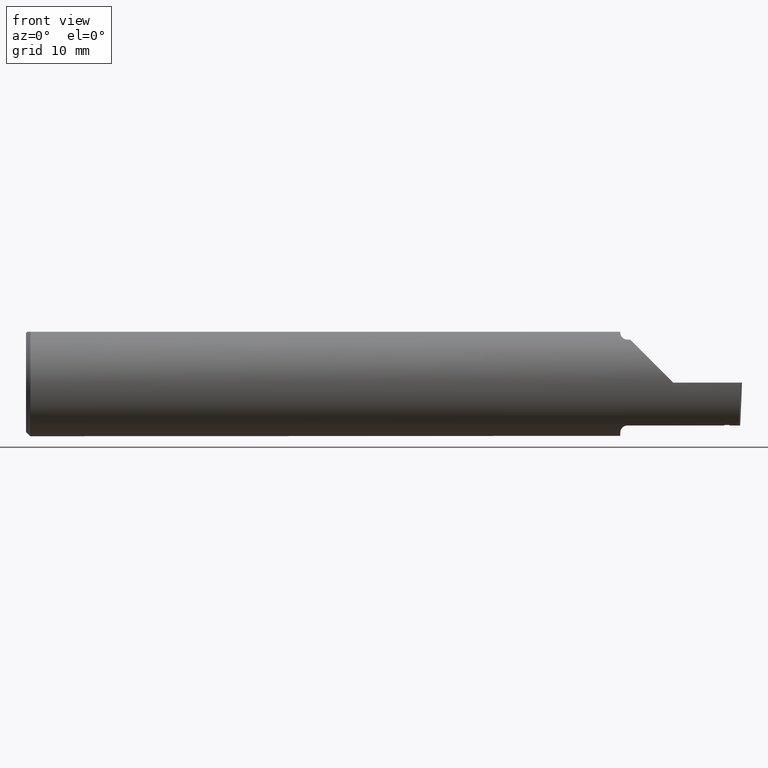
[diagram: clean part render]
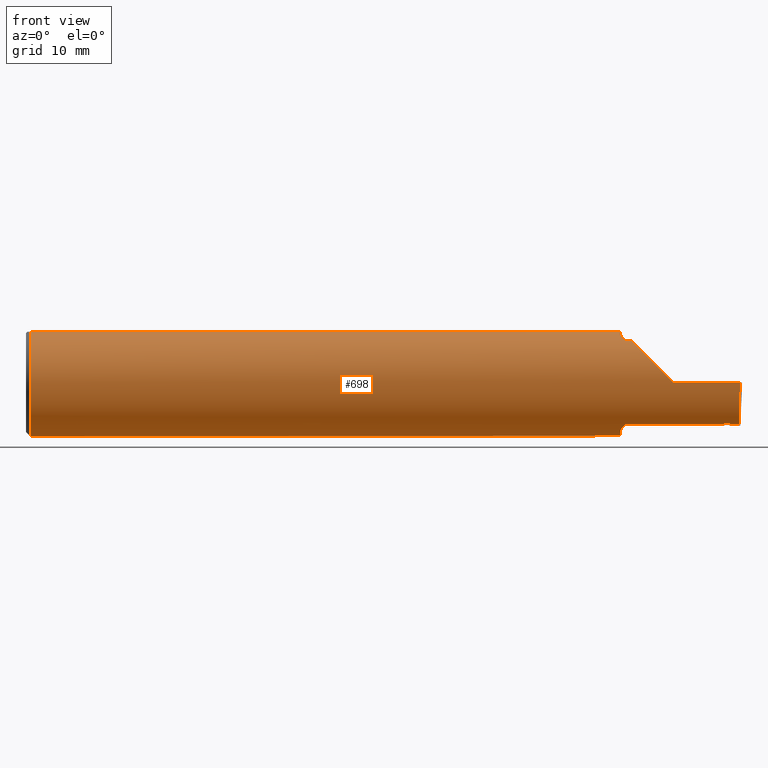
[diagram: same view with one face highlighted and labeled with its STEP entity id]
A machine part, front view. The second image highlights one B-rep face of the part: STEP entity #698.
In plain terms, the highlighted cylindrical surface (partial cylindrical patch) has radius 4.7587 mm, axis along (-1, -0, -0).
Its self-contained STEP definition (entity closure, byte-faithful):
#2 = EDGE_CURVE ( 'NONE', #272, #41, #888, .T. ) ;
#3 = ORIENTED_EDGE ( 'NONE', *, *, #25, .T. ) ;
#10 = CARTESIAN_POINT ( 'NONE',  ( 2.447366197523239251, -0.1205152561586637638, -0.1434437764736393728 ) ) ;
#21 = VERTEX_POINT ( 'NONE', #205 ) ;
#25 = EDGE_CURVE ( 'NONE', #643, #789, #360, .T. ) ;
#31 = AXIS2_PLACEMENT_3D ( 'NONE', #430, #211, #264 ) ;
#41 = VERTEX_POINT ( 'NONE', #270 ) ;
#45 = CARTESIAN_POINT ( 'NONE',  ( 2.436647136148102355, -0.1172600179964005812, -0.1461167706989303650 ) ) ;
#60 = DIRECTION ( 'NONE',  ( -1.000000000000000000, -0.000000000000000000, -0.000000000000000000 ) ) ;
#64 = VERTEX_POINT ( 'NONE', #692 ) ;
#67 =( BOUNDED_CURVE ( )  B_SPLINE_CURVE ( 3, ( #669, #910, #428, #434 ),
 .UNSPECIFIED., .F., .T. ) 
 B_SPLINE_CURVE_WITH_KNOTS ( ( 4, 4 ),
 ( 4.712388980384688786, 5.606916381293135743 ),
 .UNSPECIFIED. ) 
 CURVE ( )  GEOMETRIC_REPRESENTATION_ITEM ( )  RATIONAL_B_SPLINE_CURVE ( ( 1.000000000000000000, 0.9344226172588803170, 0.9344226172588803170, 1.000000000000000000 ) ) 
 REPRESENTATION_ITEM ( '' )  );
#68 = CARTESIAN_POINT ( 'NONE',  ( 0.01499999999999999944, 0.000000000000000000, -0.1873499999999999888 ) ) ;
#69 = VECTOR ( 'NONE', #1015, 39.37007874015748143 ) ;
#71 = ORIENTED_EDGE ( 'NONE', *, *, #126, .F. ) ;
#76 = CARTESIAN_POINT ( 'NONE',  ( 2.075000000000000178, -0.06039039658753699025, 0.1773499999999999799 ) ) ;
#77 = VERTEX_POINT ( 'NONE', #45 ) ;
#88 = DIRECTION ( 'NONE',  ( 1.000000000000000000, 0.000000000000000000, 0.000000000000000000 ) ) ;
#89 = CARTESIAN_POINT ( 'NONE',  ( 2.100000000000000089, -0.1172600179964007061, -0.1461167706989303094 ) ) ;
#100 = VECTOR ( 'NONE', #670, 39.37007874015748143 ) ;
#107 = EDGE_CURVE ( 'NONE', #229, #154, #130, .T. ) ;
#108 = CARTESIAN_POINT ( 'NONE',  ( 2.454215874547072129, -0.1209258949558934260, -0.1430977286542462479 ) ) ;
#114 = ORIENTED_EDGE ( 'NONE', *, *, #492, .T. ) ;
#126 = EDGE_CURVE ( 'NONE', #41, #21, #313, .T. ) ;
#129 = CARTESIAN_POINT ( 'NONE',  ( 2.490903355898018923, -0.1172600179964007061, -0.1461167706989303094 ) ) ;
#130 = LINE ( 'NONE', #200, #100 ) ;
#144 = ORIENTED_EDGE ( 'NONE', *, *, #826, .F. ) ;
#145 = LINE ( 'NONE', #947, #1041 ) ;
#154 = VERTEX_POINT ( 'NONE', #1017 ) ;
#157 = ORIENTED_EDGE ( 'NONE', *, *, #429, .F. ) ;
#164 = B_SPLINE_CURVE_WITH_KNOTS ( 'NONE', 3,
 ( #235, #1019, #387, #622 ),
 .UNSPECIFIED., .F., .F.,
 ( 4, 4 ),
 ( 5.553824967135426632E-18, 9.501582084868146372E-05 ),
 .UNSPECIFIED. ) ;
#182 = CARTESIAN_POINT ( 'NONE',  ( 2.450479766355340150, -0.1207021382821323457, -0.1432865166685697578 ) ) ;
#184 = DIRECTION ( 'NONE',  ( -1.000000000000000000, -0.000000000000000000, -0.000000000000000000 ) ) ;
#196 = AXIS2_PLACEMENT_3D ( 'NONE', #304, #865, #962 ) ;
#200 = CARTESIAN_POINT ( 'NONE',  ( 0.000000000000000000, 0.06039039658753697637, 0.1773499999999999799 ) ) ;
#204 = CARTESIAN_POINT ( 'NONE',  ( 2.457039432924798206, -0.1189753745793300788, -0.1447262979170456099 ) ) ;
#205 = CARTESIAN_POINT ( 'NONE',  ( 2.076062863587533780, -0.08334999999998812803, 0.1677879614275171183 ) ) ;
#207 = VERTEX_POINT ( 'NONE', #945 ) ;
#211 = DIRECTION ( 'NONE',  ( 1.000000000000000000, 0.000000000000000000, 0.000000000000000000 ) ) ;
#216 = B_SPLINE_CURVE_WITH_KNOTS ( 'NONE', 3,
 ( #89, #581, #397, #978, #332, #646, #963, #401, #810, #664, #577, #815 ),
 .UNSPECIFIED., .F., .F.,
 ( 4, 2, 2, 2, 2, 4 ),
 ( 1.967976973658110826E-07, 0.0001599896235275542170, 0.0003197824493577425937, 0.0006393681010181188592, 0.0009589537526784962631, 0.001278539404338873775 ),
 .UNSPECIFIED. ) ;
#226 = DIRECTION ( 'NONE',  ( -1.000000000000000000, -0.000000000000000000, -0.000000000000000000 ) ) ;
#229 = VERTEX_POINT ( 'NONE', #642 ) ;
#235 = CARTESIAN_POINT ( 'NONE',  ( 2.438025625059634383, -0.1199519675430013449, -0.1439150721174218550 ) ) ;
#237 = VERTEX_POINT ( 'NONE', #68 ) ;
#243 = CARTESIAN_POINT ( 'NONE',  ( 2.439893721692774076, -0.1200649772596181497, -0.1438208794963140025 ) ) ;
#264 = DIRECTION ( 'NONE',  ( 0.000000000000000000, 0.000000000000000000, -1.000000000000000000 ) ) ;
#270 = CARTESIAN_POINT ( 'NONE',  ( 2.075000000000000178, -0.06851976604679065053, 0.1743704796142198643 ) ) ;
#272 = VERTEX_POINT ( 'NONE', #76 ) ;
#285 = CARTESIAN_POINT ( 'NONE',  ( 2.084249444250374061, -0.1073163636891284328, 0.1536158790136666064 ) ) ;
#286 = VERTEX_POINT ( 'NONE', #310 ) ;
#299 = AXIS2_PLACEMENT_3D ( 'NONE', #771, #831, #746 ) ;
#304 = CARTESIAN_POINT ( 'NONE',  ( 0.01499999999999999944, 0.000000000000000000, 0.000000000000000000 ) ) ;
#308 = CARTESIAN_POINT ( 'NONE',  ( 2.490903355898018923, -0.1172600179964007061, -0.1461167706989303094 ) ) ;
#310 = CARTESIAN_POINT ( 'NONE',  ( 2.075000000000000178, -0.06851976604679065053, -0.1743704796142198643 ) ) ;
#313 = B_SPLINE_CURVE_WITH_KNOTS ( 'NONE', 3,
 ( #342, #601, #922, #441 ),
 .UNSPECIFIED., .F., .F.,
 ( 4, 4 ),
 ( 4.423516731080786679E-05, 0.0004561457252213464405 ),
 .UNSPECIFIED. ) ;
#322 = ORIENTED_EDGE ( 'NONE', *, *, #477, .F. ) ;
#324 = EDGE_CURVE ( 'NONE', #828, #64, #216, .T. ) ;
#328 = VERTEX_POINT ( 'NONE', #885 ) ;
#332 = CARTESIAN_POINT ( 'NONE',  ( 2.090551048069661189, -0.1140002044565610884, -0.1486821290834930143 ) ) ;
#336 = CARTESIAN_POINT ( 'NONE',  ( 2.451725198846280929, -0.1207767932037396297, -0.1432235952746702679 ) ) ;
#341 = CARTESIAN_POINT ( 'NONE',  ( 2.457654169374012820, -0.1181371521106696770, -0.1454128627112813432 ) ) ;
#342 = CARTESIAN_POINT ( 'NONE',  ( 2.075000000000000178, -0.06851976604679065053, 0.1743704796142198643 ) ) ;
#343 = CARTESIAN_POINT ( 'NONE',  ( 2.086319809340846820, -0.1102629523538395662, 0.1514982751257170079 ) ) ;
#345 = AXIS2_PLACEMENT_3D ( 'NONE', #420, #730, #405 ) ;
#351 = VERTEX_POINT ( 'NONE', #660 ) ;
#353 = CARTESIAN_POINT ( 'NONE',  ( 0.000000000000000000, -0.06039039658753697637, 0.1773499999999999799 ) ) ;
#360 = LINE ( 'NONE', #367, #69 ) ;
#365 = LINE ( 'NONE', #353, #451 ) ;
#367 = CARTESIAN_POINT ( 'NONE',  ( 3.749399456654646757E-32, -0.1873499999999999888, 3.061616997868384127E-16 ) ) ;
#368 = CARTESIAN_POINT ( 'NONE',  ( 2.100000000000000089, -0.1172600179964007616, 0.1461167706989303094 ) ) ;
#381 = CARTESIAN_POINT ( 'NONE',  ( 2.075346246588685162, -0.07856197451716391555, -0.1701664510438047062 ) ) ;
#387 = CARTESIAN_POINT ( 'NONE',  ( 2.437107804970440217, -0.1181637442922215259, -0.1453915222472648150 ) ) ;
#395 = ORIENTED_EDGE ( 'NONE', *, *, #672, .F. ) ;
#397 = CARTESIAN_POINT ( 'NONE',  ( 2.095804171164107554, -0.1167508198888949494, -0.1465276362740037530 ) ) ;
#401 = CARTESIAN_POINT ( 'NONE',  ( 2.080806801261507299, -0.1009700360460131785, -0.1578590382459147679 ) ) ;
#405 = DIRECTION ( 'NONE',  ( 0.000000000000000000, 0.000000000000000000, -1.000000000000000000 ) ) ;
#414 = CIRCLE ( 'NONE', #196, 0.1873499999999999888 ) ;
#420 = CARTESIAN_POINT ( 'NONE',  ( 2.075000000000000178, 0.000000000000000000, 0.000000000000000000 ) ) ;
#428 = CARTESIAN_POINT ( 'NONE',  ( 2.150065971957467070, -0.1623470442677542591, 0.1099340280425335908 ) ) ;
#429 = EDGE_CURVE ( 'NONE', #328, #351, #988, .T. ) ;
#430 = CARTESIAN_POINT ( 'NONE',  ( 2.075000000000000178, 0.000000000000000000, 0.000000000000000000 ) ) ;
#434 = CARTESIAN_POINT ( 'NONE',  ( 2.113883229301070532, -0.1172600179964009143, 0.1461167706989301707 ) ) ;
#441 = CARTESIAN_POINT ( 'NONE',  ( 2.076062863587533780, -0.08334999999998812803, 0.1677879614275171183 ) ) ;
#451 = VECTOR ( 'NONE', #691, 39.37007874015748143 ) ;
#452 = EDGE_CURVE ( 'NONE', #562, #328, #476, .T. ) ;
#468 = VECTOR ( 'NONE', #88, 39.37007874015748143 ) ;
#470 = ORIENTED_EDGE ( 'NONE', *, *, #998, .F. ) ;
#472 = FACE_OUTER_BOUND ( 'NONE', #874, .T. ) ;
#475 = CARTESIAN_POINT ( 'NONE',  ( 2.491992669264299742, -0.1873499999999999888, -0.05781030015605115313 ) ) ;
#476 = B_SPLINE_CURVE_WITH_KNOTS ( 'NONE', 3,
 ( #925, #341, #204, #593, #108, #914 ),
 .UNSPECIFIED., .F., .F.,
 ( 4, 2, 4 ),
 ( 0.0002880367379702005511, 0.0003798719638974239502, 0.0004717071898246474036 ),
 .UNSPECIFIED. ) ;
#477 = EDGE_CURVE ( 'NONE', #237, #694, #857, .T. ) ;
#482 = CARTESIAN_POINT ( 'NONE',  ( 2.452970636338631660, -0.1208513501369289228, -0.1431606568512502065 ) ) ;
#487 = ORIENTED_EDGE ( 'NONE', *, *, #2, .F. ) ;
#489 =( BOUNDED_CURVE ( )  B_SPLINE_CURVE ( 3, ( #308, #792, #475, #548 ),
 .UNSPECIFIED., .F., .T. ) 
 B_SPLINE_CURVE_WITH_KNOTS ( ( 4, 4 ),
 ( 0.08839520912052868662, 0.9829226100289757406 ),
 .UNSPECIFIED. ) 
 CURVE ( )  GEOMETRIC_REPRESENTATION_ITEM ( )  RATIONAL_B_SPLINE_CURVE ( ( 1.000000000000000000, 0.9344226172588803170, 0.9344226172588803170, 1.000000000000000000 ) ) 
 REPRESENTATION_ITEM ( '' )  );
#492 = EDGE_CURVE ( 'NONE', #789, #911, #67, .T. ) ;
#529 = VERTEX_POINT ( 'NONE', #129 ) ;
#536 = ORIENTED_EDGE ( 'NONE', *, *, #961, .F. ) ;
#545 = EDGE_CURVE ( 'NONE', #694, #272, #365, .T. ) ;
#547 = ORIENTED_EDGE ( 'NONE', *, *, #452, .F. ) ;
#548 = CARTESIAN_POINT ( 'NONE',  ( 2.493506715846705468, -0.1873499999999999888, 0.000000000000000000 ) ) ;
#556 = AXIS2_PLACEMENT_3D ( 'NONE', #781, #60, #707 ) ;
#557 = B_SPLINE_CURVE_WITH_KNOTS ( 'NONE', 3,
 ( #989, #595, #584, #285, #343, #840, #673, #368 ),
 .UNSPECIFIED., .F., .F.,
 ( 4, 2, 2, 4 ),
 ( 0.0004561457252213464405, 0.001084815134961806529, 0.001399149839832032182, 0.001713484544702258052 ),
 .UNSPECIFIED. ) ;
#560 = CARTESIAN_POINT ( 'NONE',  ( 2.076062863587535556, -0.08334999999999985476, -0.1677879614275112896 ) ) ;
#562 = VERTEX_POINT ( 'NONE', #675 ) ;
#563 = LINE ( 'NONE', #904, #468 ) ;
#574 = CARTESIAN_POINT ( 'NONE',  ( 2.449234338863467197, -0.1206273854352038488, -0.1433494205885284256 ) ) ;
#577 = CARTESIAN_POINT ( 'NONE',  ( 2.076612951569643872, -0.08702537370779848958, -0.1659621904011593096 ) ) ;
#581 = CARTESIAN_POINT ( 'NONE',  ( 2.097868998470238555, -0.1172600179964006228, -0.1461167706989303372 ) ) ;
#584 = CARTESIAN_POINT ( 'NONE',  ( 2.079075010165367665, -0.09778159395695856793, 0.1599914159748310749 ) ) ;
#593 = CARTESIAN_POINT ( 'NONE',  ( 2.455366610645409509, -0.1203676099590590409, -0.1435704688917925631 ) ) ;
#595 = CARTESIAN_POINT ( 'NONE',  ( 2.077158970028690099, -0.09067355718685699006, 0.1641499263364886996 ) ) ;
#601 = CARTESIAN_POINT ( 'NONE',  ( 2.074999999999999734, -0.07360907839729495528, 0.1723706084642000758 ) ) ;
#622 = CARTESIAN_POINT ( 'NONE',  ( 2.436647136148102355, -0.1172600179964005812, -0.1461167706989303650 ) ) ;
#642 = CARTESIAN_POINT ( 'NONE',  ( 2.075000000000000178, 0.06039039658754216666, 0.1773499999999999799 ) ) ;
#643 = VERTEX_POINT ( 'NONE', #695 ) ;
#646 = CARTESIAN_POINT ( 'NONE',  ( 2.086340974786207170, -0.1102890168945986904, -0.1514792188789465255 ) ) ;
#649 = CARTESIAN_POINT ( 'NONE',  ( 2.443629948511204297, -0.1202903368270860363, -0.1436323687962645645 ) ) ;
#651 = CARTESIAN_POINT ( 'NONE',  ( 2.100000000000000089, -0.1172600179964007061, -0.1461167706989303094 ) ) ;
#660 = CARTESIAN_POINT ( 'NONE',  ( 2.438025625059634383, -0.1199519675430013449, -0.1439150721174218550 ) ) ;
#664 = CARTESIAN_POINT ( 'NONE',  ( 2.077380638915944822, -0.09060738690120602457, -0.1640321561807271400 ) ) ;
#665 = EDGE_CURVE ( 'NONE', #351, #77, #164, .T. ) ;
#669 = CARTESIAN_POINT ( 'NONE',  ( 2.260000000000000231, -0.1873499999999999888, 2.939152317953647352E-17 ) ) ;
#670 = DIRECTION ( 'NONE',  ( -1.000000000000000000, -0.000000000000000000, -0.000000000000000000 ) ) ;
#672 = EDGE_CURVE ( 'NONE', #64, #286, #1031, .T. ) ;
#673 = CARTESIAN_POINT ( 'NONE',  ( 2.095724556588812515, -0.1172600179964061046, 0.1461167706989260906 ) ) ;
#675 = CARTESIAN_POINT ( 'NONE',  ( 2.458156987516959990, -0.1172600179964005812, -0.1461167706989303650 ) ) ;
#689 = VECTOR ( 'NONE', #184, 39.37007874015748143 ) ;
#691 = DIRECTION ( 'NONE',  ( 1.000000000000000000, 0.000000000000000000, 0.000000000000000000 ) ) ;
#692 = CARTESIAN_POINT ( 'NONE',  ( 2.076062863587535556, -0.08334999999999985476, -0.1677879614275112896 ) ) ;
#694 = VERTEX_POINT ( 'NONE', #842 ) ;
#695 = CARTESIAN_POINT ( 'NONE',  ( 2.493506715846705468, -0.1873499999999999888, 0.000000000000000000 ) ) ;
#698 = ADVANCED_FACE ( 'NONE', ( #472 ), #713, .T. ) ;
#707 = DIRECTION ( 'NONE',  ( 0.000000000000000000, 0.000000000000000000, 1.000000000000000000 ) ) ;
#713 = CYLINDRICAL_SURFACE ( 'NONE', #556, 0.1873499999999999888 ) ;
#718 = EDGE_CURVE ( 'NONE', #529, #643, #489, .T. ) ;
#728 = ORIENTED_EDGE ( 'NONE', *, *, #718, .T. ) ;
#730 = DIRECTION ( 'NONE',  ( 1.000000000000000000, 0.000000000000000000, 0.000000000000000000 ) ) ;
#731 = CARTESIAN_POINT ( 'NONE',  ( 2.441761829506817527, -0.1201777670995136660, -0.1437266445542966786 ) ) ;
#746 = DIRECTION ( 'NONE',  ( 0.000000000000000000, 0.000000000000000000, 1.000000000000000000 ) ) ;
#771 = CARTESIAN_POINT ( 'NONE',  ( 0.01499999999999999944, 0.000000000000000000, 0.000000000000000000 ) ) ;
#781 = CARTESIAN_POINT ( 'NONE',  ( 0.000000000000000000, 0.000000000000000000, 0.000000000000000000 ) ) ;
#783 = EDGE_CURVE ( 'NONE', #154, #237, #414, .T. ) ;
#789 = VERTEX_POINT ( 'NONE', #859 ) ;
#792 = CARTESIAN_POINT ( 'NONE',  ( 2.491063981715931686, -0.1623470442677541759, -0.1099340280425337990 ) ) ;
#798 = CARTESIAN_POINT ( 'NONE',  ( 2.075000000000000178, -0.07359296612170559970, -0.1723769398647691520 ) ) ;
#810 = CARTESIAN_POINT ( 'NONE',  ( 2.079475235432781677, -0.09757364237049405420, -0.1599863467203318512 ) ) ;
#811 = EDGE_CURVE ( 'NONE', #77, #828, #145, .T. ) ;
#815 = CARTESIAN_POINT ( 'NONE',  ( 2.076062863587535556, -0.08334999999999985476, -0.1677879614275112896 ) ) ;
#822 = CIRCLE ( 'NONE', #345, 0.1873499999999999888 ) ;
#826 = EDGE_CURVE ( 'NONE', #207, #911, #563, .T. ) ;
#828 = VERTEX_POINT ( 'NONE', #651 ) ;
#831 = DIRECTION ( 'NONE',  ( -1.000000000000000000, -0.000000000000000000, -0.000000000000000000 ) ) ;
#840 = CARTESIAN_POINT ( 'NONE',  ( 2.091924463282975211, -0.1152182125075826846, 0.1477647100440766526 ) ) ;
#841 = ORIENTED_EDGE ( 'NONE', *, *, #545, .F. ) ;
#842 = CARTESIAN_POINT ( 'NONE',  ( 0.01499999999999999944, -0.06039039658753697637, 0.1773499999999999799 ) ) ;
#857 = CIRCLE ( 'NONE', #299, 0.1873499999999999888 ) ;
#859 = CARTESIAN_POINT ( 'NONE',  ( 2.260000000000000231, -0.1873499999999999888, 2.939152317953647352E-17 ) ) ;
#865 = DIRECTION ( 'NONE',  ( -1.000000000000000000, -0.000000000000000000, -0.000000000000000000 ) ) ;
#874 = EDGE_LOOP ( 'NONE', ( #470, #728, #3, #114, #144, #536, #71, #487, #841, #322, #964, #903, #987, #395, #1029, #993, #995, #157, #547 ) ) ;
#885 = CARTESIAN_POINT ( 'NONE',  ( 2.452970636338631660, -0.1208513501369289228, -0.1431606568512502065 ) ) ;
#888 = CIRCLE ( 'NONE', #31, 0.1873499999999999888 ) ;
#893 = CARTESIAN_POINT ( 'NONE',  ( 2.438025625059634383, -0.1199519675430013449, -0.1439150721174218550 ) ) ;
#899 = CARTESIAN_POINT ( 'NONE',  ( 2.445498067408686804, -0.1204029065482165317, -0.1435380930436274682 ) ) ;
#903 = ORIENTED_EDGE ( 'NONE', *, *, #107, .F. ) ;
#904 = CARTESIAN_POINT ( 'NONE',  ( 2.274000000000000021, -0.1172600179964007061, 0.1461167706989303094 ) ) ;
#909 = CARTESIAN_POINT ( 'NONE',  ( 2.274000000000000021, -0.1172600179964007061, -0.1461167706989303094 ) ) ;
#910 = CARTESIAN_POINT ( 'NONE',  ( 2.202189699843949189, -0.1873500000000000443, 0.05781030015605096578 ) ) ;
#911 = VERTEX_POINT ( 'NONE', #1009 ) ;
#914 = CARTESIAN_POINT ( 'NONE',  ( 2.452970636338631660, -0.1208513501369289228, -0.1431606568512502065 ) ) ;
#916 = LINE ( 'NONE', #909, #689 ) ;
#922 = CARTESIAN_POINT ( 'NONE',  ( 2.075344683557281300, -0.07855153123406179161, 0.1701716388274757685 ) ) ;
#925 = CARTESIAN_POINT ( 'NONE',  ( 2.458156987516959990, -0.1172600179964005812, -0.1461167706989303650 ) ) ;
#943 = CARTESIAN_POINT ( 'NONE',  ( 2.075000000000000178, -0.06851976604679065053, -0.1743704796142198643 ) ) ;
#945 = CARTESIAN_POINT ( 'NONE',  ( 2.100000000000000089, -0.1172600179964007616, 0.1461167706989303094 ) ) ;
#947 = CARTESIAN_POINT ( 'NONE',  ( 2.274000000000000021, -0.1172600179964007061, -0.1461167706989303094 ) ) ;
#961 = EDGE_CURVE ( 'NONE', #21, #207, #557, .T. ) ;
#962 = DIRECTION ( 'NONE',  ( 0.000000000000000000, 0.000000000000000000, 1.000000000000000000 ) ) ;
#963 = CARTESIAN_POINT ( 'NONE',  ( 2.084228130464466755, -0.1072797540790367682, -0.1536407449207396192 ) ) ;
#964 = ORIENTED_EDGE ( 'NONE', *, *, #783, .F. ) ;
#978 = CARTESIAN_POINT ( 'NONE',  ( 2.092163414264744503, -0.1151183835841406711, -0.1478135984872520903 ) ) ;
#987 = ORIENTED_EDGE ( 'NONE', *, *, #1007, .F. ) ;
#988 = B_SPLINE_CURVE_WITH_KNOTS ( 'NONE', 3,
 ( #482, #336, #182, #574, #10, #899, #649, #731, #243, #893 ),
 .UNSPECIFIED., .F., .F.,
 ( 4, 3, 3, 4 ),
 ( 1.393189244890212689E-17, 9.519312345601180637E-05, 0.0002379828170357070475, 0.0003807725187869250190 ),
 .UNSPECIFIED. ) ;
#989 = CARTESIAN_POINT ( 'NONE',  ( 2.076062863587533780, -0.08334999999998812803, 0.1677879614275171183 ) ) ;
#993 = ORIENTED_EDGE ( 'NONE', *, *, #811, .F. ) ;
#995 = ORIENTED_EDGE ( 'NONE', *, *, #665, .F. ) ;
#998 = EDGE_CURVE ( 'NONE', #529, #562, #916, .T. ) ;
#1007 = EDGE_CURVE ( 'NONE', #286, #229, #822, .T. ) ;
#1009 = CARTESIAN_POINT ( 'NONE',  ( 2.113883229301070532, -0.1172600179964009143, 0.1461167706989301707 ) ) ;
#1015 = DIRECTION ( 'NONE',  ( -1.000000000000000000, -0.000000000000000000, -0.000000000000000000 ) ) ;
#1017 = CARTESIAN_POINT ( 'NONE',  ( 0.01499999999999756042, 0.06039039658754215278, 0.1773499999999999799 ) ) ;
#1019 = CARTESIAN_POINT ( 'NONE',  ( 2.437567358599295186, -0.1190611272263974868, -0.1446575798142952229 ) ) ;
#1029 = ORIENTED_EDGE ( 'NONE', *, *, #324, .F. ) ;
#1031 = B_SPLINE_CURVE_WITH_KNOTS ( 'NONE', 3,
 ( #560, #381, #798, #943 ),
 .UNSPECIFIED., .F., .F.,
 ( 4, 4 ),
 ( 0.001278539404338873775, 0.001694873732696217669 ),
 .UNSPECIFIED. ) ;
#1041 = VECTOR ( 'NONE', #226, 39.37007874015748143 ) ;